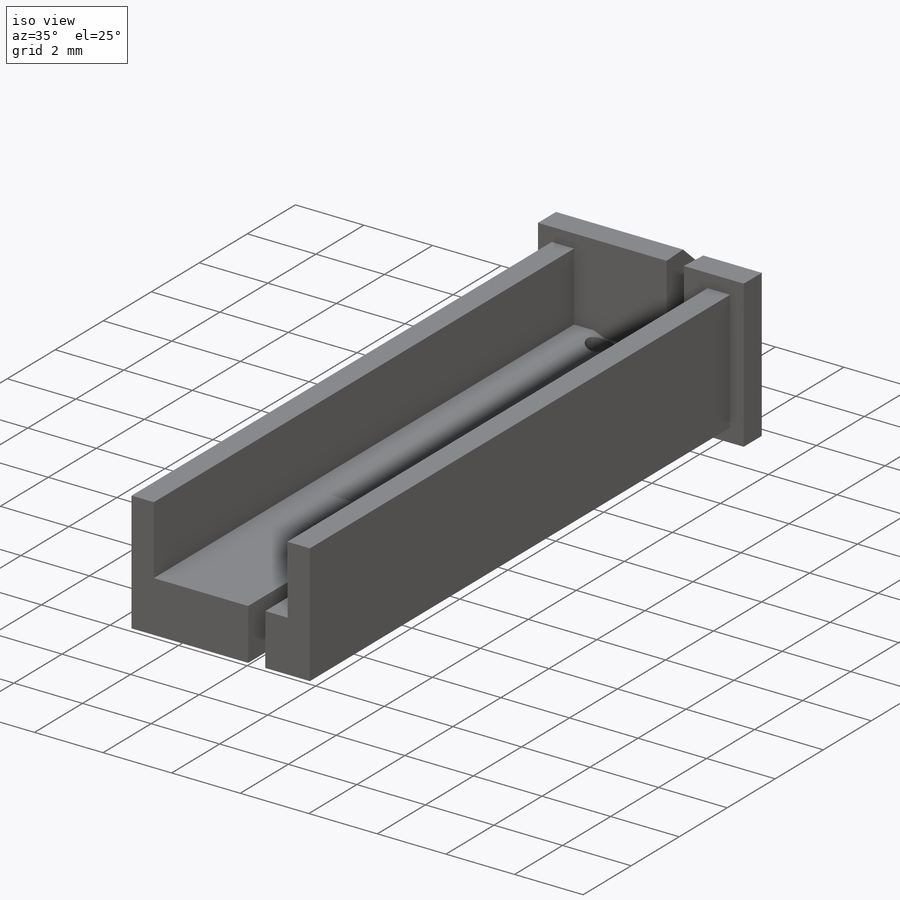
[diagram: iso view]
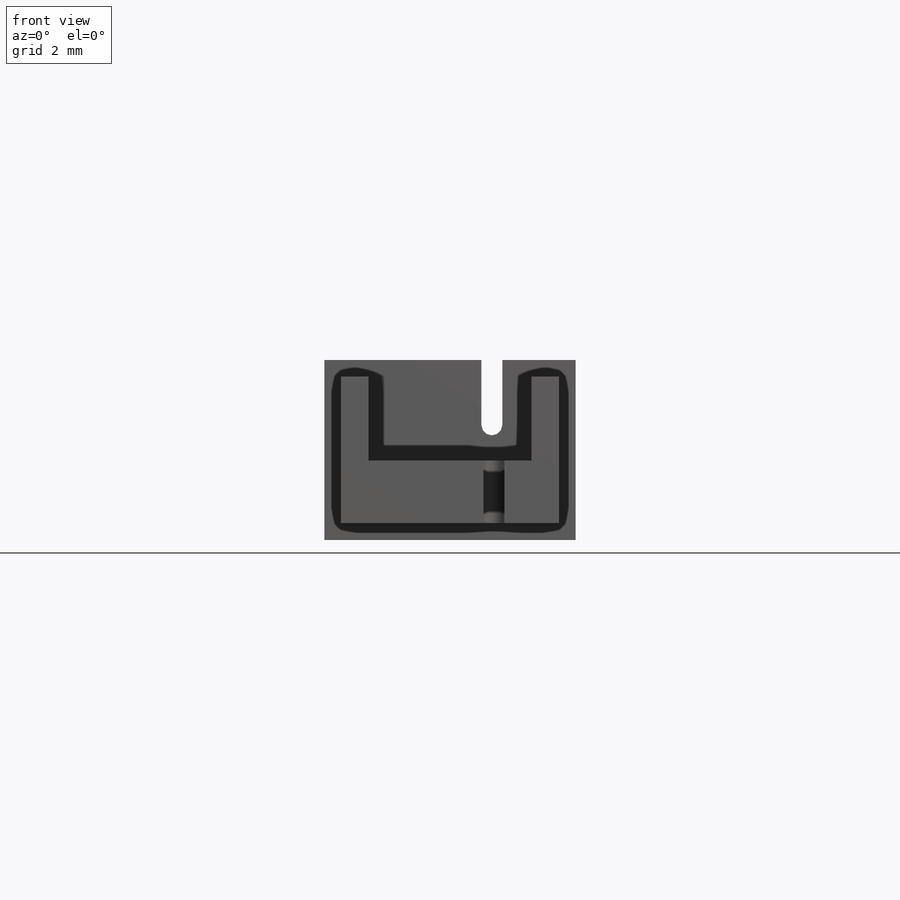
[diagram: front view]
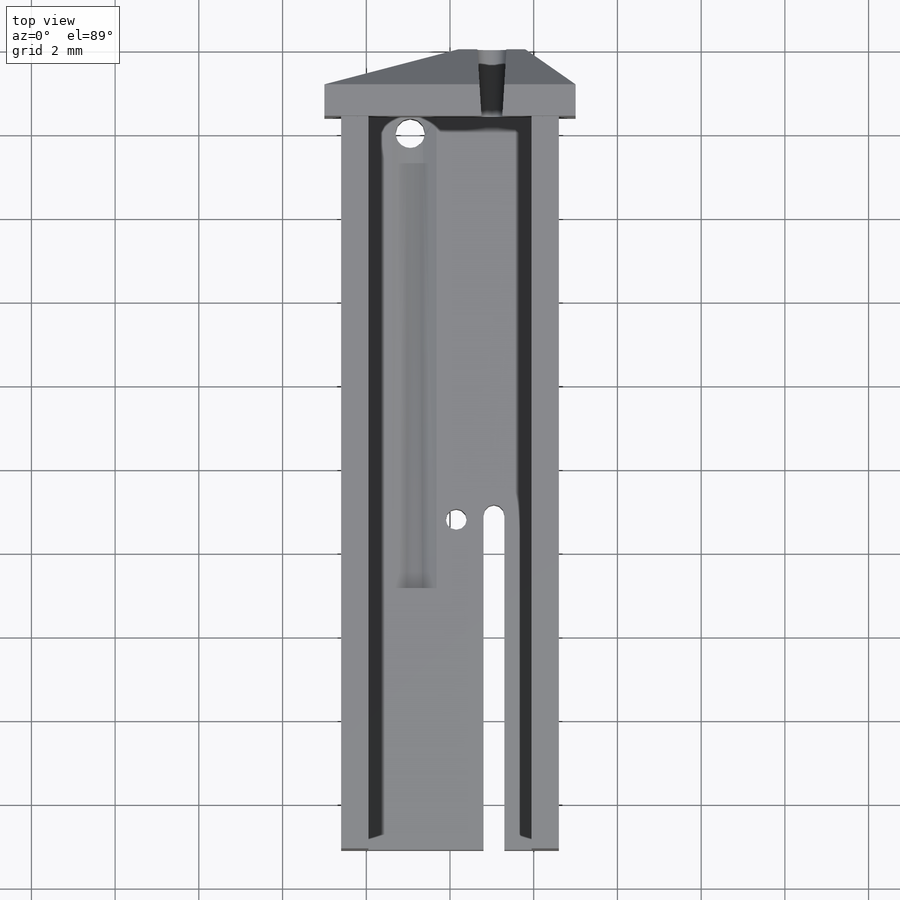
[diagram: top view]
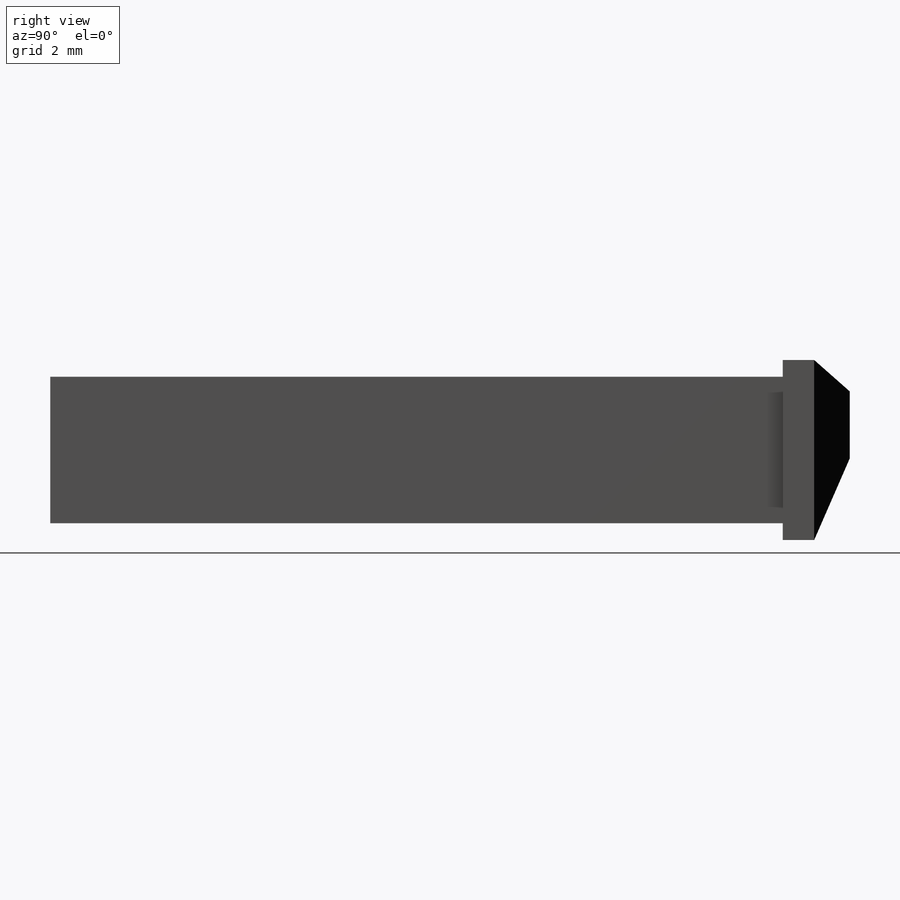
[diagram: right view]
SOLIDWORKS PART (.sldprt)
format: sldprt  version: not decoded by parser v0  size: 366,592 bytes
history: native  units: mm
features: sketch x13, cut_extrude x12, material x1, extrude x1 (+17 scaffold rows collapsed)
feature tree (44):
  scaffold x17  (default folders/planes/origin — collapsed)
  material  "Custom Plastic"
  sketch  "Sketch4"  dims[D1=8.0mm]
  extrude  "Extrude1"  Depth=19.1mm
  sketch  "Sketch6"  dims[c1.D1=0.75mm c1.D2=0.75mm c1.D3=1.6mm c2.D1=0.75mm c2.D2=1.6mm]
  cut_extrude  "Cut-Extrude1"  Depth=18.6mm
  sketch  "Sketch7"  dims[D1=0.75mm D2=1.6mm]
  cut_extrude  "Cut-Extrude2"  Depth=18.6mm
  sketch  "Sketch8"  dims[D1=1.4mm D2=1.4mm D3=1.6mm D4=1.6mm D5=~3.300719mm]
  cut_extrude  "Cut-Extrude3"  Depth=18.6mm
  sketch  "Sketch10"  dims[D1=0.65mm D2=0.65mm D3=1.6mm]
  cut_extrude  "Cut-Extrude4"  Depth=2mm
  sketch  "Sketch11"  dims[c1.D1=0.5mm c1.D2=7.9mm c1.D3=1.8mm c1.D4=17.0mm c2.D3=1.8mm]
  cut_extrude  "Cut-Extrude5"  Depth=2mm
  sketch  "Sketch12"  dims[c1.D3=0.25mm c1.D1=2.7mm c1.D2=2.7mm c2.D3=2.9mm c2.D1=6.5mm c2.D2=0.75mm c2.D4=1.5mm c3.D2=3.15mm c3.D5=~3.784508mm c4.D2=2.75mm c4.D1=8.0mm]
  cut_extrude  "Cut-Extrude6"  Depth=2mm
  sketch  "Sketch14"  dims[c1.D5=0.7mm c1.D1=0.775mm c1.D2=0.9mm c1.D3=0.45mm c1.D4=0.15mm c2.D5=0.775mm c2.D6=0.15mm c2.D7=0.45mm c2.D8=0.45mm c2.D2=0.45mm c3.D6=0.375mm c3.D7=1.0mm c3.D3=0.45mm c3.D1=1.0mm]
  cut_extrude  "Cut-Extrude8"  Depth=2mm
  sketch  "Sketch28"  dims[D1=0.5mm D2=0.85mm D3=2.95mm]
  cut_extrude  "Cut-Extrude16"  [1 undecoded]
  sketch  "Sketch29"  dims[D1=0.4mm D2=0.4mm D3=0.4mm D4=0.4mm]
  cut_extrude  "Cut-Extrude19"  Depth=2.5mm
  sketch  "Sketch18"  dims[c1.D1=4.0mm c1.D2=4.0mm c1.D3=4.0mm c1.D4=4.0mm c2.D1=1.8mm c2.D2=1.8mm c2.D3=1.65mm c2.D4=3.65mm c2.D5=3.65mm c3.D2=1.6mm c3.D3=2.15mm c3.D1=0.4mm c3.D4=0.4mm c3.D5=0.75mm c3.D6=6.0mm c4.D1=4.2mm c4.D2=2.2mm c4.D3=0.75mm c5.D1=3.2mm c5.D2=~1.119731mm c5.D3=1.2mm c6.D2=0.75mm c6.D4=0.85mm]
  cut_extrude  "Cut-Extrude20"  [1 undecoded]
  sketch  "Sketch30"  dims[c1.D1=0.76mm c1.D2=~1.708332mm c1.D3=~0.495213mm c1.D4=~0.211877mm c2.D1=1.6mm c2.D3=~0.353545mm c2.D2=0.355mm c2.D4=~1.851455mm c3.D1=1.95mm c3.D4=0.75mm]
  cut_extrude  "Cut-Extrude21"  [1 undecoded]
  sketch  "Sketch19"  dims[c1.D2=2.0mm c1.D4=2.0mm c1.D1=1.1mm c1.D3=0.75mm c1.D5=1.1mm c1.D6=0.85mm c2.D1=1.1mm]
  cut_extrude  "Cut-Extrude11"  Depth=11.25mm
decode coverage: 23 of 26 modeling features carry decoded parameters
note: ~ marks probable driven/reference dimensions
note: 3 parameter values undecoded
summary: no parameter record found for 3 features
note: suppression state not decoded; provenance and decode notes live in map.json
